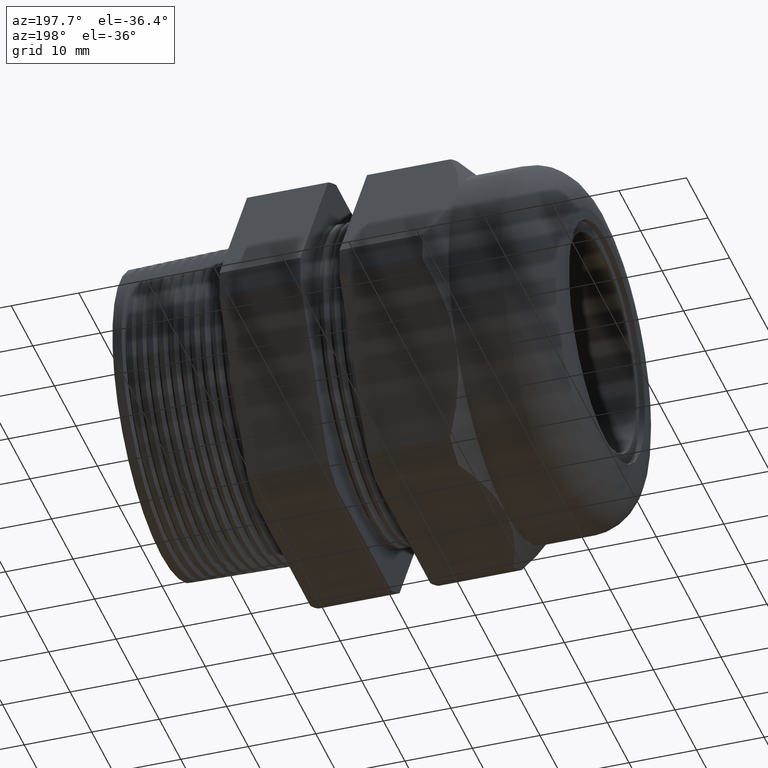
[diagram: clean part render]
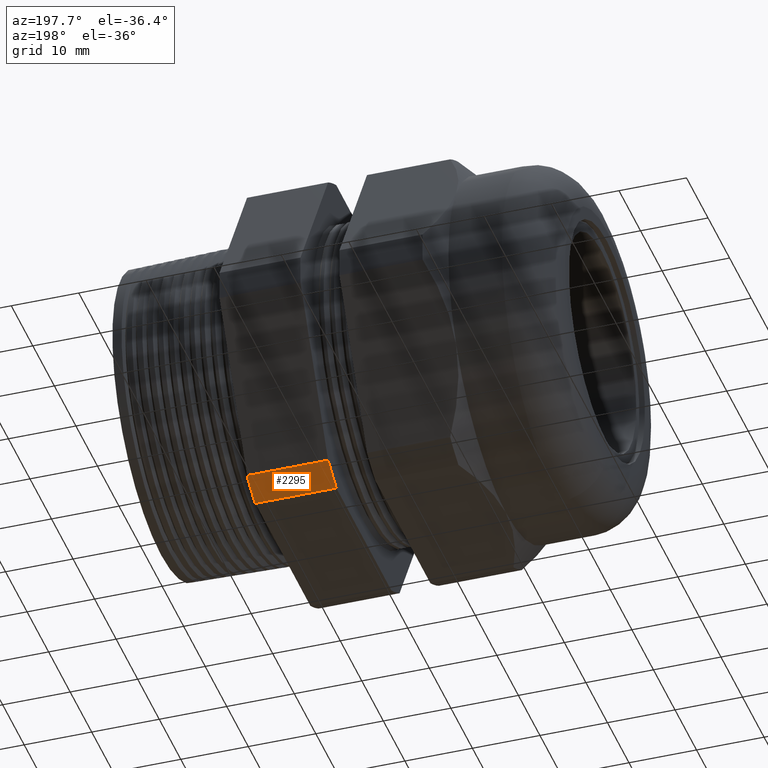
[diagram: same view with one face highlighted and labeled with its STEP entity id]
A machine part, auxiliary view. The second image highlights one B-rep face of the part: STEP entity #2295.
In plain terms, the highlighted cylindrical surface (partial cylindrical patch) has radius 29.4627 mm, axis along (-1, 0, 0).
Its self-contained STEP definition (entity closure, byte-faithful):
#79 = EDGE_CURVE ( 'NONE', #80, #4200, #2989, .T. ) ;
#80 = VERTEX_POINT ( 'NONE', #2984 ) ;
#106 = VERTEX_POINT ( 'NONE', #3054 ) ;
#111 = EDGE_CURVE ( 'NONE', #4200, #106, #3048, .T. ) ;
#124 = EDGE_CURVE ( 'NONE', #106, #2291, #3081, .T. ) ;
#125 = ORIENTED_EDGE ( 'NONE', *, *, #124, .F. ) ;
#127 = EDGE_CURVE ( 'NONE', #80, #2291, #3075, .T. ) ;
#2192 = CARTESIAN_POINT ( 'NONE',  ( -0.3099999999999997200, 0.6532729870224199800, -0.9584979952648857700 ) ) ;
#2290 = ORIENTED_EDGE ( 'NONE', *, *, #127, .T. ) ;
#2291 = VERTEX_POINT ( 'NONE', #3136 ) ;
#2293 = ORIENTED_EDGE ( 'NONE', *, *, #79, .F. ) ;
#2295 = ADVANCED_FACE ( 'NONE', ( #3135 ), #3192, .T. ) ;
#2296 = EDGE_LOOP ( 'NONE', ( #2297, #2293, #2290, #125 ) ) ;
#2297 = ORIENTED_EDGE ( 'NONE', *, *, #111, .F. ) ;
#2984 = CARTESIAN_POINT ( 'NONE',  ( -0.3099999999999997200, 0.5034471198646385300, -1.045000000000000200 ) ) ;
#2985 = DIRECTION ( 'NONE',  ( 0.0000000000000000000, 0.0000000000000000000, -1.000000000000000000 ) ) ;
#2986 = DIRECTION ( 'NONE',  ( 1.000000000000000000, 0.0000000000000000000, 0.0000000000000000000 ) ) ;
#2987 = CARTESIAN_POINT ( 'NONE',  ( -0.3100000000000000000, 0.0000000000000000000, 0.0000000000000000000 ) ) ;
#2988 = AXIS2_PLACEMENT_3D ( 'NONE', #2987, #2986, #2985 ) ;
#2989 = CIRCLE ( 'NONE', #2988, 1.159950000000000000 ) ;
#3045 = DIRECTION ( 'NONE',  ( -1.000000000000000000, 0.0000000000000000000, 0.0000000000000000000 ) ) ;
#3046 = VECTOR ( 'NONE', #3045, 39.37007874015748100 ) ;
#3047 = CARTESIAN_POINT ( 'NONE',  ( 0.4000000000000000800, 0.6532729870224199800, -0.9584979952648857700 ) ) ;
#3048 = LINE ( 'NONE', #3047, #3046 ) ;
#3054 = CARTESIAN_POINT ( 'NONE',  ( -0.7824400000000001400, 0.6532729870224199800, -0.9584979952648856600 ) ) ;
#3072 = DIRECTION ( 'NONE',  ( -1.000000000000000000, 0.0000000000000000000, 0.0000000000000000000 ) ) ;
#3073 = VECTOR ( 'NONE', #3072, 39.37007874015748100 ) ;
#3074 = CARTESIAN_POINT ( 'NONE',  ( 0.4000000000000000800, 0.5034471198646385300, -1.045000000000000200 ) ) ;
#3075 = LINE ( 'NONE', #3074, #3073 ) ;
#3077 = DIRECTION ( 'NONE',  ( 0.0000000000000000000, 0.0000000000000000000, 1.000000000000000000 ) ) ;
#3078 = DIRECTION ( 'NONE',  ( -1.000000000000000000, 0.0000000000000000000, 0.0000000000000000000 ) ) ;
#3079 = CARTESIAN_POINT ( 'NONE',  ( -0.7824400000000001400, 0.0000000000000000000, 0.0000000000000000000 ) ) ;
#3080 = AXIS2_PLACEMENT_3D ( 'NONE', #3079, #3078, #3077 ) ;
#3081 = CIRCLE ( 'NONE', #3080, 1.159950000000000000 ) ;
#3135 = FACE_OUTER_BOUND ( 'NONE', #2296, .T. ) ;
#3136 = CARTESIAN_POINT ( 'NONE',  ( -0.7824399999999998000, 0.5034471198646385300, -1.045000000000000200 ) ) ;
#3189 = DIRECTION ( 'NONE',  ( 0.0000000000000000000, 0.0000000000000000000, 1.000000000000000000 ) ) ;
#3190 = DIRECTION ( 'NONE',  ( -1.000000000000000000, 0.0000000000000000000, 0.0000000000000000000 ) ) ;
#3191 = AXIS2_PLACEMENT_3D ( 'NONE', #3194, #3190, #3189 ) ;
#3192 = CYLINDRICAL_SURFACE ( 'NONE', #3191, 1.159950000000000000 ) ;
#3194 = CARTESIAN_POINT ( 'NONE',  ( 0.4000000000000000800, 0.0000000000000000000, 0.0000000000000000000 ) ) ;
#4200 = VERTEX_POINT ( 'NONE', #2192 ) ;